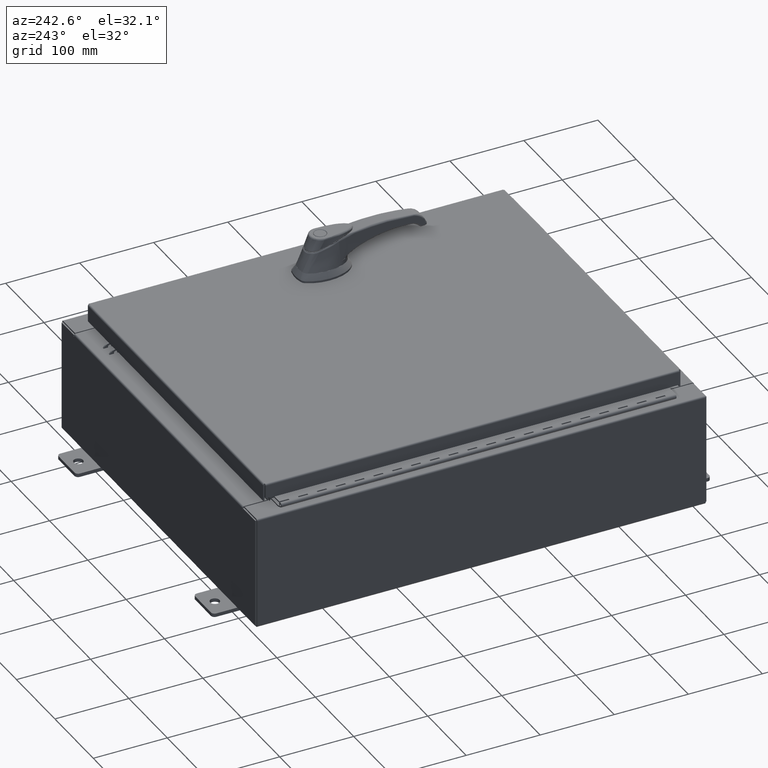
[diagram: clean part render]
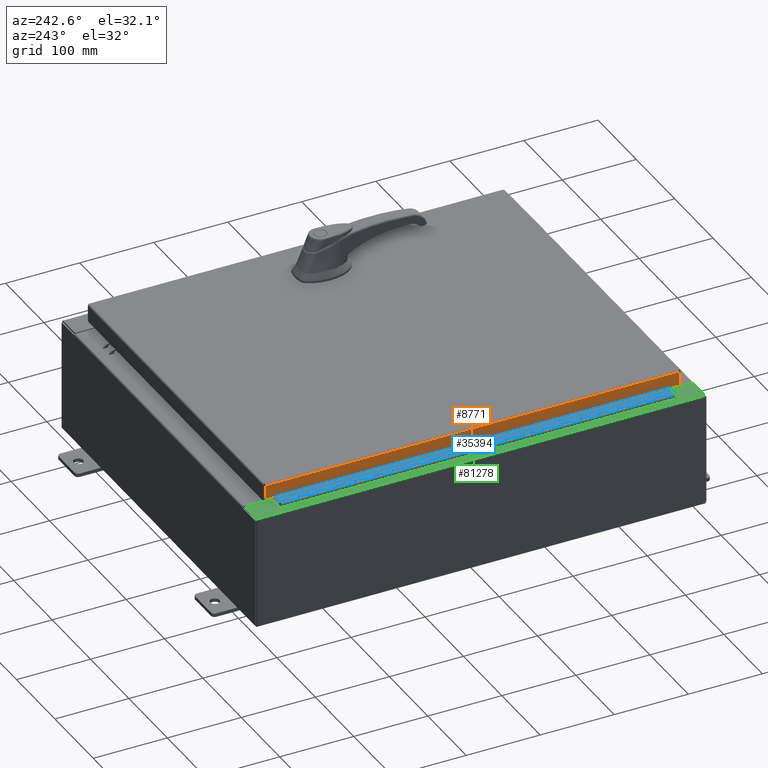
[diagram: same view with three faces highlighted in distinct colors, each labeled with its STEP entity id]
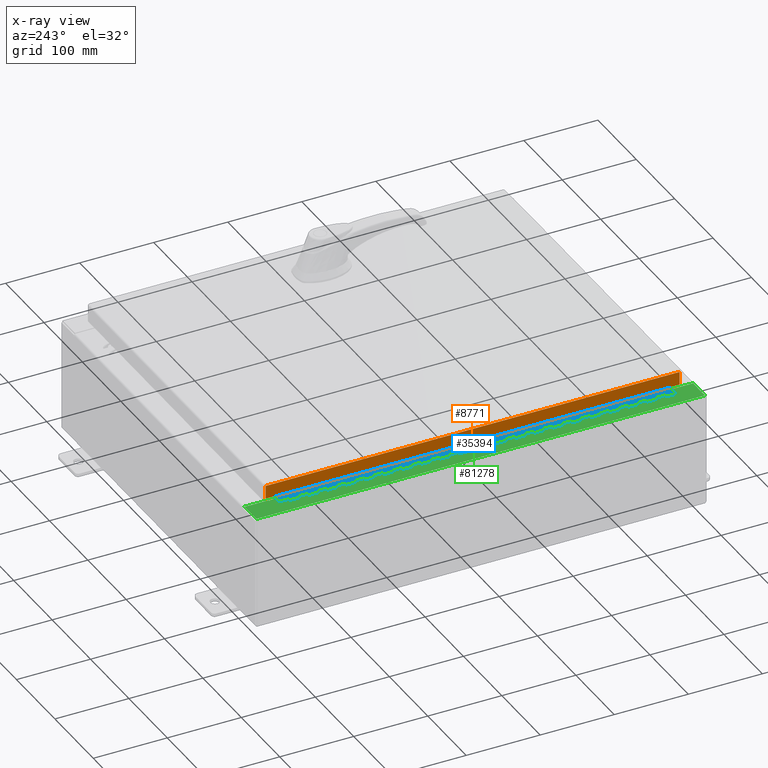
[diagram: x-ray of the same camera — body ghosted, the three highlighted faces saturated]
A machine part, auxiliary view with three faces highlighted in distinct colors.
The next image is the same camera in x-ray (body ghosted, the three faces saturated) — at least one of them is partly hidden behind the body in this view.
Their STEP definitions:

[orange] entity #8771 — the highlighted planar face has unit normal (1, 0, -0).
#1207 = CARTESIAN_POINT ( 'NONE',  ( -9.078000000000001200, -11.00515786437626700, -0.7949999999999996000 ) ) ;
#2886 = FACE_OUTER_BOUND ( 'NONE', #7534, .T. ) ;
#6687 = VERTEX_POINT ( 'NONE', #79056 ) ;
#6715 = CARTESIAN_POINT ( 'NONE',  ( -9.078000000000001200, -11.09400000000000100, -0.7949999999999997100 ) ) ;
#6776 = DIRECTION ( 'NONE',  ( -3.034122441942816500E-015, 0.0000000000000000000, -1.000000000000000000 ) ) ;
#7035 = LINE ( 'NONE', #6715, #70775 ) ;
#7534 = EDGE_LOOP ( 'NONE', ( #107417, #81574, #18056, #77831 ) ) ;
#8771 = ADVANCED_FACE ( 'NONE', ( #2886 ), #110576, .F. ) ;
#15080 = CARTESIAN_POINT ( 'NONE',  ( -9.077999999999999400, 11.00515786437626700, 1.046531838129534400E-013 ) ) ;
#18056 = ORIENTED_EDGE ( 'NONE', *, *, #62719, .F. ) ;
#20311 = DIRECTION ( 'NONE',  ( -3.034122441942816500E-015, 6.982962677686265900E-015, -1.000000000000000000 ) ) ;
#20557 = VERTEX_POINT ( 'NONE', #79494 ) ;
#23744 = DIRECTION ( 'NONE',  ( -3.034122441942816500E-015, 6.982962677686265900E-015, -1.000000000000000000 ) ) ;
#26193 = CARTESIAN_POINT ( 'NONE',  ( -9.077999999999999400, 11.00515786437626900, -0.08770000000000004200 ) ) ;
#28972 = LINE ( 'NONE', #56452, #49202 ) ;
#47774 = DIRECTION ( 'NONE',  ( 3.735695558659274900E-031, -1.000000000000000000, -1.101212895818006000E-045 ) ) ;
#49202 = VECTOR ( 'NONE', #47774, 39.37007874015748100 ) ;
#49949 = CARTESIAN_POINT ( 'NONE',  ( -9.077999999999999400, -3.391264428150889200E-030, 2.780457718396847000E-014 ) ) ;
#52961 = VECTOR ( 'NONE', #23744, 39.37007874015748100 ) ;
#54750 = CARTESIAN_POINT ( 'NONE',  ( -9.077999999999999400, -11.00515786437627100, -0.07469999999999976700 ) ) ;
#56452 = CARTESIAN_POINT ( 'NONE',  ( -9.077999999999999400, -11.09400000000000100, -0.08770000000000004200 ) ) ;
#58643 = DIRECTION ( 'NONE',  ( 1.000000000000000000, 3.735695558659274400E-031, -3.034122441942816500E-015 ) ) ;
#62719 = EDGE_CURVE ( 'NONE', #78210, #6687, #7035, .T. ) ;
#70775 = VECTOR ( 'NONE', #75634, 39.37007874015748100 ) ;
#73556 = LINE ( 'NONE', #54750, #96697 ) ;
#73791 = AXIS2_PLACEMENT_3D ( 'NONE', #49949, #58643, #6776 ) ;
#75634 = DIRECTION ( 'NONE',  ( 4.379057701015054300E-047, 1.000000000000000000, 1.231227687788112300E-016 ) ) ;
#77831 = ORIENTED_EDGE ( 'NONE', *, *, #79407, .F. ) ;
#78210 = VERTEX_POINT ( 'NONE', #1207 ) ;
#79056 = CARTESIAN_POINT ( 'NONE',  ( -9.078000000000001200, 11.00515786437627100, -0.7949999999999969300 ) ) ;
#79407 = EDGE_CURVE ( 'NONE', #20557, #78210, #73556, .T. ) ;
#79494 = CARTESIAN_POINT ( 'NONE',  ( -9.077999999999999400, -11.00515786437626900, -0.08770000000000007000 ) ) ;
#81574 = ORIENTED_EDGE ( 'NONE', *, *, #83382, .T. ) ;
#83382 = EDGE_CURVE ( 'NONE', #105039, #6687, #96391, .T. ) ;
#96391 = LINE ( 'NONE', #15080, #52961 ) ;
#96697 = VECTOR ( 'NONE', #20311, 39.37007874015748100 ) ;
#103719 = EDGE_CURVE ( 'NONE', #105039, #20557, #28972, .T. ) ;
#105039 = VERTEX_POINT ( 'NONE', #26193 ) ;
#107417 = ORIENTED_EDGE ( 'NONE', *, *, #103719, .F. ) ;
#110576 = PLANE ( 'NONE',  #73791 ) ;

[blue] entity #35394 — the highlighted planar face has unit normal (-0, -0, 1).
#118 = ORIENTED_EDGE ( 'NONE', *, *, #27878, .F. ) ;
#173 = ORIENTED_EDGE ( 'NONE', *, *, #96963, .F. ) ;
#812 = EDGE_CURVE ( 'NONE', #83124, #6819, #77041, .T. ) ;
#997 = LINE ( 'NONE', #80486, #108065 ) ;
#1088 = VECTOR ( 'NONE', #27705, 39.37007874015748100 ) ;
#1376 = DIRECTION ( 'NONE',  ( 0.0000000000000000000, -0.0000000000000000000, -1.000000000000000000 ) ) ;
#1669 = LINE ( 'NONE', #20033, #21942 ) ;
#1772 = CARTESIAN_POINT ( 'NONE',  ( -0.6869999999999982800, 0.5504999999999997700, -9.500000000000000000 ) ) ;
#1960 = ORIENTED_EDGE ( 'NONE', *, *, #54554, .F. ) ;
#2058 = ORIENTED_EDGE ( 'NONE', *, *, #48876, .T. ) ;
#2177 = ORIENTED_EDGE ( 'NONE', *, *, #106520, .F. ) ;
#2196 = CARTESIAN_POINT ( 'NONE',  ( -0.6869999999999978300, 0.6754999999999996600, -16.00000000000000000 ) ) ;
#2285 = CARTESIAN_POINT ( 'NONE',  ( -0.6869999999999973900, 0.8004999999999995500, -20.00000000000000000 ) ) ;
#2425 = VERTEX_POINT ( 'NONE', #93186 ) ;
#2864 = VECTOR ( 'NONE', #30391, 39.37007874015748100 ) ;
#2981 = ORIENTED_EDGE ( 'NONE', *, *, #60534, .F. ) ;
#3129 = LINE ( 'NONE', #25972, #72247 ) ;
#3189 = ORIENTED_EDGE ( 'NONE', *, *, #812, .F. ) ;
#3596 = LINE ( 'NONE', #20152, #26638 ) ;
#3688 = ORIENTED_EDGE ( 'NONE', *, *, #40702, .F. ) ;
#3888 = VECTOR ( 'NONE', #17635, 39.37007874015748100 ) ;
#3933 = EDGE_CURVE ( 'NONE', #29956, #8745, #57571, .T. ) ;
#3980 = CARTESIAN_POINT ( 'NONE',  ( -0.6869999999999973900, 0.8004999999999995500, -11.50000000000000000 ) ) ;
#4000 = VECTOR ( 'NONE', #95536, 39.37007874015748100 ) ;
#4123 = EDGE_CURVE ( 'NONE', #108576, #70792, #72513, .T. ) ;
#4232 = ORIENTED_EDGE ( 'NONE', *, *, #35893, .F. ) ;
#4260 = ORIENTED_EDGE ( 'NONE', *, *, #46760, .T. ) ;
#4427 = ORIENTED_EDGE ( 'NONE', *, *, #90076, .F. ) ;
#4516 = DIRECTION ( 'NONE',  ( 0.0000000000000000000, -0.0000000000000000000, -1.000000000000000000 ) ) ;
#4695 = VECTOR ( 'NONE', #92702, 39.37007874015748100 ) ;
#4854 = CARTESIAN_POINT ( 'NONE',  ( -0.6869999999999982800, 0.5504999999999997700, -11.50000000000000000 ) ) ;
#4977 = CARTESIAN_POINT ( 'NONE',  ( -0.6869999999999973900, 0.8004999999999995500, -11.00000000000000000 ) ) ;
#5128 = EDGE_CURVE ( 'NONE', #36652, #57577, #20904, .T. ) ;
#5252 = VECTOR ( 'NONE', #32942, 39.37007874015748100 ) ;
#5492 = DIRECTION ( 'NONE',  ( 0.0000000000000000000, -0.0000000000000000000, -1.000000000000000000 ) ) ;
#5562 = DIRECTION ( 'NONE',  ( 3.369016658928398200E-015, 1.000000000000000000, 0.0000000000000000000 ) ) ;
#5668 = LINE ( 'NONE', #1772, #72095 ) ;
#5760 = EDGE_CURVE ( 'NONE', #13293, #80250, #83116, .T. ) ;
#5766 = ORIENTED_EDGE ( 'NONE', *, *, #22013, .F. ) ;
#5840 = CARTESIAN_POINT ( 'NONE',  ( -0.6869999999999978300, 0.6754999999999996600, -2.000000000000000000 ) ) ;
#5858 = DIRECTION ( 'NONE',  ( 0.0000000000000000000, 0.0000000000000000000, 1.000000000000000000 ) ) ;
#5860 = DIRECTION ( 'NONE',  ( 3.369016658928398200E-015, 1.000000000000000000, 0.0000000000000000000 ) ) ;
#6013 = VERTEX_POINT ( 'NONE', #59655 ) ;
#6211 = DIRECTION ( 'NONE',  ( 0.0000000000000000000, -0.0000000000000000000, -1.000000000000000000 ) ) ;
#6369 = EDGE_CURVE ( 'NONE', #34471, #16832, #73585, .T. ) ;
#6441 = CARTESIAN_POINT ( 'NONE',  ( -0.6869999999999978300, 0.6754999999999996600, -21.00000000000000000 ) ) ;
#6819 = VERTEX_POINT ( 'NONE', #106025 ) ;
#7162 = VECTOR ( 'NONE', #99791, 39.37007874015748100 ) ;
#7207 = CARTESIAN_POINT ( 'NONE',  ( -0.6869999999999973900, 0.8004999999999995500, -5.000000000000000000 ) ) ;
#7239 = LINE ( 'NONE', #63675, #73658 ) ;
#7338 = VECTOR ( 'NONE', #97291, 39.37007874015748100 ) ;
#7387 = VERTEX_POINT ( 'NONE', #106984 ) ;
#7409 = EDGE_CURVE ( 'NONE', #18285, #61819, #70785, .T. ) ;
#7484 = DIRECTION ( 'NONE',  ( -3.389037039080723100E-015, -1.000000000000000000, 0.0000000000000000000 ) ) ;
#7915 = CARTESIAN_POINT ( 'NONE',  ( -0.6869999999999978300, 0.6754999999999996600, -21.00000000000000000 ) ) ;
#8127 = DIRECTION ( 'NONE',  ( -3.389037039080723100E-015, -1.000000000000000000, 0.0000000000000000000 ) ) ;
#8257 = VERTEX_POINT ( 'NONE', #59504 ) ;
#8564 = VERTEX_POINT ( 'NONE', #21252 ) ;
#8745 = VERTEX_POINT ( 'NONE', #92803 ) ;
#8774 = CARTESIAN_POINT ( 'NONE',  ( -0.6869999999999978300, 0.6754999999999996600, -2.999999999999999600 ) ) ;
#8832 = VERTEX_POINT ( 'NONE', #11988 ) ;
#8891 = CARTESIAN_POINT ( 'NONE',  ( -0.6869999999999978300, 0.6754999999999996600, -11.99999999999999800 ) ) ;
#8910 = LINE ( 'NONE', #87798, #77998 ) ;
#9068 = EDGE_CURVE ( 'NONE', #110266, #88853, #78708, .T. ) ;
#9255 = EDGE_CURVE ( 'NONE', #11871, #81796, #73267, .T. ) ;
#9261 = VERTEX_POINT ( 'NONE', #78498 ) ;
#9320 = LINE ( 'NONE', #16876, #3888 ) ;
#9826 = CARTESIAN_POINT ( 'NONE',  ( -0.6869999999999982800, 0.5504999999999997700, -15.50000000000000000 ) ) ;
#10102 = EDGE_CURVE ( 'NONE', #101875, #7387, #32517, .T. ) ;
#10676 = VERTEX_POINT ( 'NONE', #38537 ) ;
#10679 = VECTOR ( 'NONE', #100159, 39.37007874015748100 ) ;
#10948 = EDGE_CURVE ( 'NONE', #85099, #8564, #97741, .T. ) ;
#10974 = CARTESIAN_POINT ( 'NONE',  ( -0.6869999999999982800, 0.5504999999999997700, -3.500000000000000000 ) ) ;
#10985 = DIRECTION ( 'NONE',  ( 3.389037039080723100E-015, 1.000000000000000000, -0.0000000000000000000 ) ) ;
#11183 = LINE ( 'NONE', #35898, #77522 ) ;
#11265 = DIRECTION ( 'NONE',  ( -3.389037039080723100E-015, -1.000000000000000000, 0.0000000000000000000 ) ) ;
#11710 = CARTESIAN_POINT ( 'NONE',  ( -0.6869999999999982800, 0.5504999999999997700, -7.499999999999999100 ) ) ;
#11742 = VECTOR ( 'NONE', #72298, 39.37007874015748100 ) ;
#11800 = CARTESIAN_POINT ( 'NONE',  ( -0.6869999999999998300, 0.07549999999999991400, -21.00000000000000000 ) ) ;
#11833 = CARTESIAN_POINT ( 'NONE',  ( -0.6869999999999978300, 0.6754999999999996600, -21.00000000000000000 ) ) ;
#11871 = VERTEX_POINT ( 'NONE', #32050 ) ;
#11988 = CARTESIAN_POINT ( 'NONE',  ( -0.6869999999999978300, 0.6754999999999996600, -8.500000000000000000 ) ) ;
#12014 = LINE ( 'NONE', #23887, #14701 ) ;
#12026 = VECTOR ( 'NONE', #87517, 39.37007874015748100 ) ;
#12052 = CARTESIAN_POINT ( 'NONE',  ( -0.6869999999999978300, 0.6754999999999996600, -21.00000000000000000 ) ) ;
#12332 = LINE ( 'NONE', #56354, #107244 ) ;
#12480 = VERTEX_POINT ( 'NONE', #99428 ) ;
#12617 = DIRECTION ( 'NONE',  ( 3.389037039080723100E-015, 1.000000000000000000, -0.0000000000000000000 ) ) ;
#12749 = CARTESIAN_POINT ( 'NONE',  ( -0.6869999999999978300, 0.6754999999999996600, 0.0000000000000000000 ) ) ;
#13232 = CARTESIAN_POINT ( 'NONE',  ( -0.6869999999999982800, 0.5504999999999997700, -20.50000000000000400 ) ) ;
#13293 = VERTEX_POINT ( 'NONE', #15131 ) ;
#13685 = CARTESIAN_POINT ( 'NONE',  ( -0.6869999999999973900, 0.8004999999999995500, -5.500000000000000000 ) ) ;
#13904 = ORIENTED_EDGE ( 'NONE', *, *, #22834, .F. ) ;
#14379 = VERTEX_POINT ( 'NONE', #91068 ) ;
#14458 = CARTESIAN_POINT ( 'NONE',  ( -0.6869999999999973900, 0.8004999999999995500, -6.499999999999999100 ) ) ;
#14519 = CARTESIAN_POINT ( 'NONE',  ( -0.6869999999999978300, 0.6754999999999996600, -21.00000000000000000 ) ) ;
#14530 = VECTOR ( 'NONE', #85709, 39.37007874015748100 ) ;
#14701 = VECTOR ( 'NONE', #84496, 39.37007874015748100 ) ;
#14758 = VERTEX_POINT ( 'NONE', #52039 ) ;
#14945 = ORIENTED_EDGE ( 'NONE', *, *, #49057, .F. ) ;
#15131 = CARTESIAN_POINT ( 'NONE',  ( -0.6869999999999978300, 0.6754999999999996600, -13.50000000000000000 ) ) ;
#15171 = LINE ( 'NONE', #38753, #99241 ) ;
#15520 = DIRECTION ( 'NONE',  ( 0.0000000000000000000, 0.0000000000000000000, 1.000000000000000000 ) ) ;
#16135 = ORIENTED_EDGE ( 'NONE', *, *, #41397, .T. ) ;
#16285 = CARTESIAN_POINT ( 'NONE',  ( -0.6869999999999982800, 0.5504999999999997700, -8.500000000000000000 ) ) ;
#16832 = VERTEX_POINT ( 'NONE', #24010 ) ;
#16876 = CARTESIAN_POINT ( 'NONE',  ( -0.6869999999999973900, 0.8004999999999995500, -9.500000000000000000 ) ) ;
#17051 = ORIENTED_EDGE ( 'NONE', *, *, #9255, .F. ) ;
#17316 = CARTESIAN_POINT ( 'NONE',  ( -0.6869999999999978300, 0.6754999999999996600, -7.000000000000000000 ) ) ;
#17635 = DIRECTION ( 'NONE',  ( -3.389037039080723100E-015, -1.000000000000000000, 0.0000000000000000000 ) ) ;
#17703 = CARTESIAN_POINT ( 'NONE',  ( -0.6869999999999982800, 0.5504999999999997700, -11.00000000000000000 ) ) ;
#17736 = CARTESIAN_POINT ( 'NONE',  ( -0.6869999999999973900, 0.8004999999999995500, -20.50000000000000400 ) ) ;
#17748 = LINE ( 'NONE', #25544, #107205 ) ;
#17825 = VERTEX_POINT ( 'NONE', #59182 ) ;
#17880 = LINE ( 'NONE', #111260, #61225 ) ;
#17921 = ORIENTED_EDGE ( 'NONE', *, *, #43256, .F. ) ;
#17954 = CARTESIAN_POINT ( 'NONE',  ( -0.6869999999999982800, 0.5504999999999997700, -16.50000000000000000 ) ) ;
#18207 = VECTOR ( 'NONE', #98567, 39.37007874015748100 ) ;
#18285 = VERTEX_POINT ( 'NONE', #81487 ) ;
#18301 = VECTOR ( 'NONE', #34496, 39.37007874015748100 ) ;
#18393 = VECTOR ( 'NONE', #102361, 39.37007874015748100 ) ;
#18677 = VECTOR ( 'NONE', #21028, 39.37007874015748100 ) ;
#18885 = CARTESIAN_POINT ( 'NONE',  ( -0.6869999999999978300, 0.6754999999999996600, -9.500000000000000000 ) ) ;
#18968 = CARTESIAN_POINT ( 'NONE',  ( -0.6869999999999982800, 0.5504999999999997700, -14.49999999999999800 ) ) ;
#19009 = CARTESIAN_POINT ( 'NONE',  ( -0.6869999999999973900, 0.8004999999999995500, -4.500000000000000000 ) ) ;
#19062 = VECTOR ( 'NONE', #10985, 39.37007874015748100 ) ;
#19202 = CARTESIAN_POINT ( 'NONE',  ( -0.6869999999999982800, 0.5504999999999997700, -4.500000000000000000 ) ) ;
#19230 = CARTESIAN_POINT ( 'NONE',  ( -0.6869999999999973900, 0.8004999999999995500, -11.99999999999999800 ) ) ;
#19280 = LINE ( 'NONE', #82332, #68229 ) ;
#19449 = ORIENTED_EDGE ( 'NONE', *, *, #49647, .F. ) ;
#19713 = VECTOR ( 'NONE', #78483, 39.37007874015748100 ) ;
#19740 = EDGE_CURVE ( 'NONE', #18285, #61611, #91499, .T. ) ;
#19746 = VECTOR ( 'NONE', #12617, 39.37007874015748100 ) ;
#20033 = CARTESIAN_POINT ( 'NONE',  ( -0.6869999999999973900, 0.8004999999999995500, -10.50000000000000000 ) ) ;
#20152 = CARTESIAN_POINT ( 'NONE',  ( -0.6869999999999973900, 0.8004999999999995500, -8.500000000000000000 ) ) ;
#20227 = EDGE_CURVE ( 'NONE', #96473, #80250, #84610, .T. ) ;
#20554 = DIRECTION ( 'NONE',  ( 0.0000000000000000000, 0.0000000000000000000, 1.000000000000000000 ) ) ;
#20559 = ORIENTED_EDGE ( 'NONE', *, *, #70939, .F. ) ;
#20662 = FACE_OUTER_BOUND ( 'NONE', #77436, .T. ) ;
#20904 = LINE ( 'NONE', #11800, #18207 ) ;
#21028 = DIRECTION ( 'NONE',  ( 3.369016658928398200E-015, 1.000000000000000000, 0.0000000000000000000 ) ) ;
#21088 = LINE ( 'NONE', #41700, #18393 ) ;
#21252 = CARTESIAN_POINT ( 'NONE',  ( -0.6869999999999978300, 0.6754999999999996600, -4.000000000000000000 ) ) ;
#21324 = EDGE_CURVE ( 'NONE', #52504, #69922, #53353, .T. ) ;
#21325 = VECTOR ( 'NONE', #25852, 39.37007874015748100 ) ;
#21392 = CARTESIAN_POINT ( 'NONE',  ( -0.6869999999999982800, 0.5504999999999997700, -7.499999999999999100 ) ) ;
#21467 = ORIENTED_EDGE ( 'NONE', *, *, #29502, .T. ) ;
#21543 = ORIENTED_EDGE ( 'NONE', *, *, #85564, .F. ) ;
#21840 = EDGE_CURVE ( 'NONE', #99671, #108577, #50716, .T. ) ;
#21942 = VECTOR ( 'NONE', #54857, 39.37007874015748100 ) ;
#22013 = EDGE_CURVE ( 'NONE', #97779, #49268, #85945, .T. ) ;
#22016 = DIRECTION ( 'NONE',  ( -3.389037039080723100E-015, -1.000000000000000000, 0.0000000000000000000 ) ) ;
#22441 = CARTESIAN_POINT ( 'NONE',  ( -0.6869999999999982800, 0.5504999999999997700, -12.99999999999999800 ) ) ;
#22511 = LINE ( 'NONE', #45453, #88977 ) ;
#22524 = CARTESIAN_POINT ( 'NONE',  ( -0.6870000000000022800, -0.6245000000000003900, -21.00000000000000000 ) ) ;
#22818 = VECTOR ( 'NONE', #97197, 39.37007874015748100 ) ;
#22834 = EDGE_CURVE ( 'NONE', #49268, #90767, #50610, .T. ) ;
#23066 = VERTEX_POINT ( 'NONE', #72509 ) ;
#23480 = ORIENTED_EDGE ( 'NONE', *, *, #68563, .F. ) ;
#23523 = VECTOR ( 'NONE', #27491, 39.37007874015748100 ) ;
#23704 = ORIENTED_EDGE ( 'NONE', *, *, #4123, .T. ) ;
#23745 = EDGE_CURVE ( 'NONE', #81796, #29220, #70595, .T. ) ;
#23814 = ORIENTED_EDGE ( 'NONE', *, *, #21840, .F. ) ;
#23887 = CARTESIAN_POINT ( 'NONE',  ( -0.6869999999999973900, 0.8004999999999995500, -16.50000000000000000 ) ) ;
#23888 = CARTESIAN_POINT ( 'NONE',  ( -0.6869999999999978300, 0.6754999999999996600, -16.50000000000000000 ) ) ;
#24010 = CARTESIAN_POINT ( 'NONE',  ( -0.6869999999999982800, 0.5504999999999997700, -6.000000000000000900 ) ) ;
#24047 = LINE ( 'NONE', #79545, #1088 ) ;
#24083 = DIRECTION ( 'NONE',  ( 0.0000000000000000000, -0.0000000000000000000, -1.000000000000000000 ) ) ;
#24275 = VERTEX_POINT ( 'NONE', #90458 ) ;
#25263 = CARTESIAN_POINT ( 'NONE',  ( -0.6869999999999973900, 0.8004999999999995500, -17.99999999999999600 ) ) ;
#25544 = CARTESIAN_POINT ( 'NONE',  ( -0.6869999999999982800, 0.5504999999999997700, -18.50000000000000000 ) ) ;
#25731 = LINE ( 'NONE', #30300, #71853 ) ;
#25852 = DIRECTION ( 'NONE',  ( -3.389037039080723100E-015, -1.000000000000000000, 0.0000000000000000000 ) ) ;
#25972 = CARTESIAN_POINT ( 'NONE',  ( -0.6869999999999978300, 0.6754999999999996600, -21.00000000000000000 ) ) ;
#26638 = VECTOR ( 'NONE', #106913, 39.37007874015748100 ) ;
#26724 = DIRECTION ( 'NONE',  ( 0.0000000000000000000, 0.0000000000000000000, 1.000000000000000000 ) ) ;
#26791 = DIRECTION ( 'NONE',  ( -3.389037039080723100E-015, -1.000000000000000000, 0.0000000000000000000 ) ) ;
#26980 = EDGE_CURVE ( 'NONE', #16832, #53115, #44657, .T. ) ;
#26998 = ORIENTED_EDGE ( 'NONE', *, *, #68950, .F. ) ;
#27090 = VERTEX_POINT ( 'NONE', #18968 ) ;
#27400 = CARTESIAN_POINT ( 'NONE',  ( -0.6869999999999982800, 0.5504999999999997700, -17.50000000000000000 ) ) ;
#27459 = VECTOR ( 'NONE', #98658, 39.37007874015748100 ) ;
#27491 = DIRECTION ( 'NONE',  ( 0.0000000000000000000, 0.0000000000000000000, 1.000000000000000000 ) ) ;
#27498 = VERTEX_POINT ( 'NONE', #41936 ) ;
#27553 = CARTESIAN_POINT ( 'NONE',  ( -0.6869999999999973900, 0.8004999999999995500, -2.999999999999999600 ) ) ;
#27634 = CARTESIAN_POINT ( 'NONE',  ( -0.6869999999999978300, 0.6754999999999996600, -11.50000000000000000 ) ) ;
#27705 = DIRECTION ( 'NONE',  ( -3.389037039080723100E-015, -1.000000000000000000, 0.0000000000000000000 ) ) ;
#27878 = EDGE_CURVE ( 'NONE', #99472, #82523, #9320, .T. ) ;
#28047 = ORIENTED_EDGE ( 'NONE', *, *, #82021, .F. ) ;
#28188 = CARTESIAN_POINT ( 'NONE',  ( -0.6869999999999973900, 0.8004999999999995500, -1.499999999999999800 ) ) ;
#28426 = CARTESIAN_POINT ( 'NONE',  ( -0.6869999999999978300, 0.6754999999999996600, -0.5000000000000000000 ) ) ;
#28584 = VECTOR ( 'NONE', #85336, 39.37007874015748100 ) ;
#28636 = LINE ( 'NONE', #75587, #48877 ) ;
#28704 = EDGE_CURVE ( 'NONE', #38142, #101875, #24047, .T. ) ;
#29184 = CARTESIAN_POINT ( 'NONE',  ( -0.6869999999999982800, 0.5504999999999997700, -21.00000000000000000 ) ) ;
#29220 = VERTEX_POINT ( 'NONE', #112408 ) ;
#29231 = DIRECTION ( 'NONE',  ( 0.0000000000000000000, 0.0000000000000000000, 1.000000000000000000 ) ) ;
#29502 = EDGE_CURVE ( 'NONE', #69403, #8257, #37653, .T. ) ;
#29956 = VERTEX_POINT ( 'NONE', #40929 ) ;
#30300 = CARTESIAN_POINT ( 'NONE',  ( -0.6869999999999982800, 0.5504999999999997700, -14.49999999999999800 ) ) ;
#30391 = DIRECTION ( 'NONE',  ( -3.389037039080723100E-015, -1.000000000000000000, 0.0000000000000000000 ) ) ;
#30424 = ORIENTED_EDGE ( 'NONE', *, *, #10948, .F. ) ;
#30470 = EDGE_CURVE ( 'NONE', #61819, #83124, #32023, .T. ) ;
#30741 = ORIENTED_EDGE ( 'NONE', *, *, #3933, .T. ) ;
#31027 = CARTESIAN_POINT ( 'NONE',  ( -0.6869999999999982800, 0.5504999999999997700, -16.00000000000000000 ) ) ;
#31337 = CARTESIAN_POINT ( 'NONE',  ( -0.6869999999999982800, 0.5504999999999997700, -4.000000000000000000 ) ) ;
#31644 = CARTESIAN_POINT ( 'NONE',  ( -0.6869999999999978300, 0.6754999999999996600, -18.50000000000000000 ) ) ;
#31905 = ORIENTED_EDGE ( 'NONE', *, *, #80767, .F. ) ;
#32023 = LINE ( 'NONE', #11710, #11742 ) ;
#32050 = CARTESIAN_POINT ( 'NONE',  ( -0.6869999999999982800, 0.5504999999999997700, -10.50000000000000000 ) ) ;
#32081 = CARTESIAN_POINT ( 'NONE',  ( -0.6869999999999973900, 0.8004999999999995500, -3.500000000000000000 ) ) ;
#32499 = VECTOR ( 'NONE', #74223, 39.37007874015748100 ) ;
#32517 = LINE ( 'NONE', #48864, #50102 ) ;
#32627 = VECTOR ( 'NONE', #5492, 39.37007874015748100 ) ;
#32926 = CARTESIAN_POINT ( 'NONE',  ( -0.6869999999999978300, 0.6754999999999996600, -14.00000000000000000 ) ) ;
#32942 = DIRECTION ( 'NONE',  ( 3.389037039080723100E-015, 1.000000000000000000, -0.0000000000000000000 ) ) ;
#32968 = EDGE_CURVE ( 'NONE', #48264, #52781, #50683, .T. ) ;
#33439 = EDGE_CURVE ( 'NONE', #8832, #6819, #95478, .T. ) ;
#33472 = EDGE_CURVE ( 'NONE', #106247, #82361, #46629, .T. ) ;
#33671 = LINE ( 'NONE', #109424, #79713 ) ;
#33875 = CARTESIAN_POINT ( 'NONE',  ( -0.6869999999999978300, 0.6754999999999996600, -21.00000000000000000 ) ) ;
#34187 = DIRECTION ( 'NONE',  ( 0.0000000000000000000, 0.0000000000000000000, 1.000000000000000000 ) ) ;
#34318 = DIRECTION ( 'NONE',  ( 0.0000000000000000000, -0.0000000000000000000, -1.000000000000000000 ) ) ;
#34471 = VERTEX_POINT ( 'NONE', #85050 ) ;
#34482 = ORIENTED_EDGE ( 'NONE', *, *, #43899, .F. ) ;
#34496 = DIRECTION ( 'NONE',  ( 0.0000000000000000000, -0.0000000000000000000, -1.000000000000000000 ) ) ;
#34600 = ORIENTED_EDGE ( 'NONE', *, *, #90739, .F. ) ;
#34698 = CARTESIAN_POINT ( 'NONE',  ( -0.6869999999999978300, 0.6754999999999996600, -6.499999999999999100 ) ) ;
#34916 = CARTESIAN_POINT ( 'NONE',  ( -0.6869999999999998300, 0.07549999999999991400, 0.0000000000000000000 ) ) ;
#35096 = LINE ( 'NONE', #70083, #12026 ) ;
#35394 = ADVANCED_FACE ( 'NONE', ( #20662 ), #109351, .T. ) ;
#35756 = CARTESIAN_POINT ( 'NONE',  ( -0.6869999999999982800, 0.5504999999999997700, -1.499999999999999800 ) ) ;
#35893 = EDGE_CURVE ( 'NONE', #69432, #48264, #19280, .T. ) ;
#35898 = CARTESIAN_POINT ( 'NONE',  ( -0.6869999999999982800, 0.5504999999999997700, -8.500000000000000000 ) ) ;
#35976 = DIRECTION ( 'NONE',  ( 3.389037039080723100E-015, 1.000000000000000000, -0.0000000000000000000 ) ) ;
#36516 = CARTESIAN_POINT ( 'NONE',  ( -0.6869999999999978300, 0.6754999999999996600, -21.00000000000000000 ) ) ;
#36652 = VERTEX_POINT ( 'NONE', #57667 ) ;
#36750 = LINE ( 'NONE', #2285, #19062 ) ;
#37009 = LINE ( 'NONE', #44428, #103375 ) ;
#37232 = ORIENTED_EDGE ( 'NONE', *, *, #19740, .T. ) ;
#37570 = CARTESIAN_POINT ( 'NONE',  ( -0.6869999999999982800, 0.5504999999999997700, -8.000000000000000000 ) ) ;
#37653 = LINE ( 'NONE', #33875, #14530 ) ;
#37772 = CARTESIAN_POINT ( 'NONE',  ( -0.6869999999999982800, 0.5504999999999997700, -12.49999999999999800 ) ) ;
#38142 = VERTEX_POINT ( 'NONE', #51632 ) ;
#38537 = CARTESIAN_POINT ( 'NONE',  ( -0.6869999999999982800, 0.5504999999999997700, -10.00000000000000000 ) ) ;
#38629 = VECTOR ( 'NONE', #55008, 39.37007874015748100 ) ;
#38753 = CARTESIAN_POINT ( 'NONE',  ( -0.6869999999999973900, 0.8004999999999995500, -19.00000000000000000 ) ) ;
#38963 = LINE ( 'NONE', #43290, #21325 ) ;
#38967 = LINE ( 'NONE', #63149, #82272 ) ;
#39014 = ORIENTED_EDGE ( 'NONE', *, *, #30470, .F. ) ;
#39409 = CARTESIAN_POINT ( 'NONE',  ( -0.6869999999999978300, 0.6754999999999996600, -5.000000000000000000 ) ) ;
#39460 = VERTEX_POINT ( 'NONE', #99706 ) ;
#39855 = ORIENTED_EDGE ( 'NONE', *, *, #32968, .F. ) ;
#40084 = CARTESIAN_POINT ( 'NONE',  ( -0.6869999999999978300, 0.6754999999999996600, -1.499999999999999800 ) ) ;
#40134 = DIRECTION ( 'NONE',  ( 0.0000000000000000000, 0.0000000000000000000, 1.000000000000000000 ) ) ;
#40452 = EDGE_CURVE ( 'NONE', #23066, #111783, #91978, .T. ) ;
#40702 = EDGE_CURVE ( 'NONE', #73619, #77510, #12014, .T. ) ;
#40929 = CARTESIAN_POINT ( 'NONE',  ( -0.6869999999999978300, 0.6754999999999996600, -20.50000000000000400 ) ) ;
#41081 = LINE ( 'NONE', #17736, #87176 ) ;
#41397 = EDGE_CURVE ( 'NONE', #60401, #39460, #112183, .T. ) ;
#41562 = CARTESIAN_POINT ( 'NONE',  ( -0.6869999999999982800, 0.5504999999999997700, -7.000000000000000000 ) ) ;
#41700 = CARTESIAN_POINT ( 'NONE',  ( -0.6869999999999978300, 0.6754999999999996600, -21.00000000000000000 ) ) ;
#41914 = EDGE_CURVE ( 'NONE', #64685, #74725, #38967, .T. ) ;
#41936 = CARTESIAN_POINT ( 'NONE',  ( -0.6869999999999982800, 0.5504999999999997700, -18.50000000000000000 ) ) ;
#42275 = EDGE_CURVE ( 'NONE', #36652, #107108, #45711, .T. ) ;
#42753 = LINE ( 'NONE', #98647, #19746 ) ;
#42863 = CARTESIAN_POINT ( 'NONE',  ( -0.6869999999999978300, 0.6754999999999996600, -21.00000000000000000 ) ) ;
#43256 = EDGE_CURVE ( 'NONE', #69922, #61611, #22511, .T. ) ;
#43290 = CARTESIAN_POINT ( 'NONE',  ( -0.6869999999999973900, 0.8004999999999995500, -13.50000000000000000 ) ) ;
#43313 = CARTESIAN_POINT ( 'NONE',  ( -0.6869999999999973900, 0.8004999999999995500, -18.50000000000000000 ) ) ;
#43557 = LINE ( 'NONE', #37772, #86907 ) ;
#43708 = DIRECTION ( 'NONE',  ( 0.0000000000000000000, -0.0000000000000000000, -1.000000000000000000 ) ) ;
#43760 = ORIENTED_EDGE ( 'NONE', *, *, #96924, .T. ) ;
#43899 = EDGE_CURVE ( 'NONE', #44483, #69432, #53623, .T. ) ;
#44428 = CARTESIAN_POINT ( 'NONE',  ( -0.6869999999999982800, 0.5504999999999997700, -1.499999999999999800 ) ) ;
#44483 = VERTEX_POINT ( 'NONE', #27634 ) ;
#44657 = LINE ( 'NONE', #69711, #4000 ) ;
#44669 = CARTESIAN_POINT ( 'NONE',  ( -0.6869999999999978300, 0.6754999999999996600, -21.00000000000000000 ) ) ;
#44993 = ORIENTED_EDGE ( 'NONE', *, *, #105716, .F. ) ;
#45453 = CARTESIAN_POINT ( 'NONE',  ( -0.6869999999999973900, 0.8004999999999995500, -7.000000000000000000 ) ) ;
#45463 = VECTOR ( 'NONE', #60719, 39.37007874015748100 ) ;
#45626 = ORIENTED_EDGE ( 'NONE', *, *, #84660, .F. ) ;
#45706 = VECTOR ( 'NONE', #76833, 39.37007874015748100 ) ;
#45711 = LINE ( 'NONE', #22524, #89077 ) ;
#46141 = ORIENTED_EDGE ( 'NONE', *, *, #23745, .F. ) ;
#46156 = ORIENTED_EDGE ( 'NONE', *, *, #108001, .F. ) ;
#46441 = DIRECTION ( 'NONE',  ( 0.0000000000000000000, -0.0000000000000000000, -1.000000000000000000 ) ) ;
#46629 = LINE ( 'NONE', #88471, #66870 ) ;
#46683 = ORIENTED_EDGE ( 'NONE', *, *, #28704, .F. ) ;
#46760 = EDGE_CURVE ( 'NONE', #90112, #53115, #111525, .T. ) ;
#47541 = VECTOR ( 'NONE', #74235, 39.37007874015748100 ) ;
#47814 = CARTESIAN_POINT ( 'NONE',  ( -0.6869999999999982800, 0.5504999999999997700, -2.500000000000000000 ) ) ;
#47839 = CARTESIAN_POINT ( 'NONE',  ( -0.6869999999999982800, 0.5504999999999997700, -5.500000000000000000 ) ) ;
#47976 = CARTESIAN_POINT ( 'NONE',  ( -0.6870000000000022800, -0.6245000000000003900, -21.00000000000000000 ) ) ;
#47986 = VERTEX_POINT ( 'NONE', #27400 ) ;
#48050 = CARTESIAN_POINT ( 'NONE',  ( -0.6869999999999978300, 0.6754999999999996600, -21.00000000000000000 ) ) ;
#48264 = VERTEX_POINT ( 'NONE', #66692 ) ;
#48367 = LINE ( 'NONE', #111348, #45706 ) ;
#48550 = LINE ( 'NONE', #42863, #91932 ) ;
#48864 = CARTESIAN_POINT ( 'NONE',  ( -0.6869999999999982800, 0.5504999999999997700, -19.50000000000000000 ) ) ;
#48876 = EDGE_CURVE ( 'NONE', #73619, #70629, #3129, .T. ) ;
#48877 = VECTOR ( 'NONE', #24083, 39.37007874015748100 ) ;
#48970 = ORIENTED_EDGE ( 'NONE', *, *, #95080, .F. ) ;
#49023 = CARTESIAN_POINT ( 'NONE',  ( -0.6869999999999978300, 0.6754999999999996600, -21.00000000000000000 ) ) ;
#49057 = EDGE_CURVE ( 'NONE', #108576, #23066, #64104, .T. ) ;
#49105 = VERTEX_POINT ( 'NONE', #5840 ) ;
#49268 = VERTEX_POINT ( 'NONE', #76591 ) ;
#49314 = ORIENTED_EDGE ( 'NONE', *, *, #53905, .T. ) ;
#49351 = DIRECTION ( 'NONE',  ( 3.389037039080723100E-015, 1.000000000000000000, -0.0000000000000000000 ) ) ;
#49427 = ORIENTED_EDGE ( 'NONE', *, *, #93688, .F. ) ;
#49428 = VECTOR ( 'NONE', #73461, 39.37007874015748100 ) ;
#49551 = EDGE_CURVE ( 'NONE', #86001, #83289, #37009, .T. ) ;
#49647 = EDGE_CURVE ( 'NONE', #84646, #89836, #11183, .T. ) ;
#49848 = ORIENTED_EDGE ( 'NONE', *, *, #50055, .F. ) ;
#49955 = CARTESIAN_POINT ( 'NONE',  ( -0.6869999999999978300, 0.6754999999999996600, -21.00000000000000000 ) ) ;
#50003 = EDGE_CURVE ( 'NONE', #101152, #24275, #15171, .T. ) ;
#50055 = EDGE_CURVE ( 'NONE', #57496, #55227, #50343, .T. ) ;
#50102 = VECTOR ( 'NONE', #101191, 39.37007874015748100 ) ;
#50109 = CARTESIAN_POINT ( 'NONE',  ( -0.6869999999999978300, 0.6754999999999996600, -15.50000000000000000 ) ) ;
#50270 = ORIENTED_EDGE ( 'NONE', *, *, #9068, .F. ) ;
#50343 = LINE ( 'NONE', #91342, #93779 ) ;
#50366 = ORIENTED_EDGE ( 'NONE', *, *, #50003, .F. ) ;
#50610 = LINE ( 'NONE', #7207, #94053 ) ;
#50632 = ORIENTED_EDGE ( 'NONE', *, *, #107027, .F. ) ;
#50683 = LINE ( 'NONE', #19230, #7338 ) ;
#50708 = EDGE_CURVE ( 'NONE', #55227, #96473, #43557, .T. ) ;
#50716 = LINE ( 'NONE', #32081, #4695 ) ;
#50749 = CARTESIAN_POINT ( 'NONE',  ( -0.6869999999999978300, 0.6754999999999996600, -12.49999999999999800 ) ) ;
#50985 = EDGE_CURVE ( 'NONE', #88853, #70629, #99153, .T. ) ;
#51035 = ORIENTED_EDGE ( 'NONE', *, *, #96597, .F. ) ;
#51632 = CARTESIAN_POINT ( 'NONE',  ( -0.6869999999999978300, 0.6754999999999996600, -19.50000000000000000 ) ) ;
#51683 = ORIENTED_EDGE ( 'NONE', *, *, #58663, .F. ) ;
#51695 = CARTESIAN_POINT ( 'NONE',  ( -0.6869999999999982800, 0.5504999999999997700, -1.000000000000000000 ) ) ;
#52039 = CARTESIAN_POINT ( 'NONE',  ( -0.6869999999999982800, 0.5504999999999997700, -17.99999999999999600 ) ) ;
#52504 = VERTEX_POINT ( 'NONE', #74813 ) ;
#52781 = VERTEX_POINT ( 'NONE', #8891 ) ;
#53115 = VERTEX_POINT ( 'NONE', #90286 ) ;
#53345 = ORIENTED_EDGE ( 'NONE', *, *, #40452, .F. ) ;
#53353 = LINE ( 'NONE', #92977, #73657 ) ;
#53356 = DIRECTION ( 'NONE',  ( 0.0000000000000000000, 0.0000000000000000000, 1.000000000000000000 ) ) ;
#53623 = LINE ( 'NONE', #3980, #102453 ) ;
#53905 = EDGE_CURVE ( 'NONE', #44483, #29220, #33671, .T. ) ;
#54307 = CARTESIAN_POINT ( 'NONE',  ( -0.6869999999999973900, 0.8004999999999995500, -7.499999999999999100 ) ) ;
#54554 = EDGE_CURVE ( 'NONE', #57577, #70792, #67392, .T. ) ;
#54857 = DIRECTION ( 'NONE',  ( -3.389037039080723100E-015, -1.000000000000000000, 0.0000000000000000000 ) ) ;
#55008 = DIRECTION ( 'NONE',  ( 3.389037039080723100E-015, 1.000000000000000000, -0.0000000000000000000 ) ) ;
#55191 = CARTESIAN_POINT ( 'NONE',  ( -0.6869999999999978300, 0.6754999999999996600, -3.500000000000000000 ) ) ;
#55227 = VERTEX_POINT ( 'NONE', #59413 ) ;
#56354 = CARTESIAN_POINT ( 'NONE',  ( -0.6869999999999982800, 0.5504999999999997700, -17.50000000000000000 ) ) ;
#56724 = LINE ( 'NONE', #44669, #77035 ) ;
#56731 = DIRECTION ( 'NONE',  ( 0.0000000000000000000, 0.0000000000000000000, 1.000000000000000000 ) ) ;
#56791 = CARTESIAN_POINT ( 'NONE',  ( -0.6869999999999982800, 0.5504999999999997700, -13.50000000000000000 ) ) ;
#56807 = VECTOR ( 'NONE', #86312, 39.37007874015748100 ) ;
#57382 = CARTESIAN_POINT ( 'NONE',  ( -0.6869999999999978300, 0.6754999999999996600, -14.99999999999999800 ) ) ;
#57400 = DIRECTION ( 'NONE',  ( 1.000000000000000000, -3.369016658928398200E-015, 0.0000000000000000000 ) ) ;
#57403 = ORIENTED_EDGE ( 'NONE', *, *, #76193, .T. ) ;
#57496 = VERTEX_POINT ( 'NONE', #50749 ) ;
#57571 = LINE ( 'NONE', #96373, #77922 ) ;
#57577 = VERTEX_POINT ( 'NONE', #34916 ) ;
#57654 = DIRECTION ( 'NONE',  ( 0.0000000000000000000, 0.0000000000000000000, 1.000000000000000000 ) ) ;
#57667 = CARTESIAN_POINT ( 'NONE',  ( -0.6869999999999998300, 0.07549999999999991400, -21.00000000000000000 ) ) ;
#57767 = ORIENTED_EDGE ( 'NONE', *, *, #42275, .T. ) ;
#58663 = EDGE_CURVE ( 'NONE', #74725, #2425, #111680, .T. ) ;
#58734 = VECTOR ( 'NONE', #71705, 39.37007874015748100 ) ;
#58781 = CARTESIAN_POINT ( 'NONE',  ( -0.6869999999999978300, 0.6754999999999996600, -17.00000000000000000 ) ) ;
#59039 = CARTESIAN_POINT ( 'NONE',  ( -0.6869999999999973900, 0.8004999999999995500, -14.49999999999999800 ) ) ;
#59182 = CARTESIAN_POINT ( 'NONE',  ( -0.6869999999999978300, 0.6754999999999996600, -10.00000000000000000 ) ) ;
#59413 = CARTESIAN_POINT ( 'NONE',  ( -0.6869999999999982800, 0.5504999999999997700, -12.49999999999999800 ) ) ;
#59504 = CARTESIAN_POINT ( 'NONE',  ( -0.6869999999999978300, 0.6754999999999996600, -1.000000000000000000 ) ) ;
#59655 = CARTESIAN_POINT ( 'NONE',  ( -0.6869999999999982800, 0.5504999999999997700, -17.00000000000000000 ) ) ;
#59826 = ORIENTED_EDGE ( 'NONE', *, *, #80118, .T. ) ;
#60281 = ORIENTED_EDGE ( 'NONE', *, *, #80429, .F. ) ;
#60401 = VERTEX_POINT ( 'NONE', #31644 ) ;
#60499 = ORIENTED_EDGE ( 'NONE', *, *, #101034, .F. ) ;
#60534 = EDGE_CURVE ( 'NONE', #69403, #86001, #107636, .T. ) ;
#60719 = DIRECTION ( 'NONE',  ( -3.389037039080723100E-015, -1.000000000000000000, 0.0000000000000000000 ) ) ;
#61225 = VECTOR ( 'NONE', #7484, 39.37007874015748100 ) ;
#61590 = ORIENTED_EDGE ( 'NONE', *, *, #101656, .F. ) ;
#61611 = VERTEX_POINT ( 'NONE', #17316 ) ;
#61819 = VERTEX_POINT ( 'NONE', #21392 ) ;
#61824 = ORIENTED_EDGE ( 'NONE', *, *, #33472, .T. ) ;
#62256 = DIRECTION ( 'NONE',  ( 0.0000000000000000000, -0.0000000000000000000, -1.000000000000000000 ) ) ;
#63023 = VERTEX_POINT ( 'NONE', #71846 ) ;
#63149 = CARTESIAN_POINT ( 'NONE',  ( -0.6869999999999973900, 0.8004999999999995500, -2.500000000000000000 ) ) ;
#63593 = CARTESIAN_POINT ( 'NONE',  ( -0.6869999999999982800, 0.5504999999999997700, -14.00000000000000000 ) ) ;
#63675 = CARTESIAN_POINT ( 'NONE',  ( -0.6869999999999978300, 0.6754999999999996600, -21.00000000000000000 ) ) ;
#63889 = ORIENTED_EDGE ( 'NONE', *, *, #94226, .F. ) ;
#64104 = LINE ( 'NONE', #81928, #95343 ) ;
#64685 = VERTEX_POINT ( 'NONE', #75652 ) ;
#66680 = ORIENTED_EDGE ( 'NONE', *, *, #50985, .F. ) ;
#66692 = CARTESIAN_POINT ( 'NONE',  ( -0.6869999999999982800, 0.5504999999999997700, -11.99999999999999800 ) ) ;
#66779 = ORIENTED_EDGE ( 'NONE', *, *, #74577, .T. ) ;
#66870 = VECTOR ( 'NONE', #96843, 39.37007874015748100 ) ;
#67042 = CARTESIAN_POINT ( 'NONE',  ( -0.6869999999999978300, 0.6754999999999996600, -21.00000000000000000 ) ) ;
#67392 = LINE ( 'NONE', #107429, #18677 ) ;
#67558 = ORIENTED_EDGE ( 'NONE', *, *, #72465, .T. ) ;
#67578 = ORIENTED_EDGE ( 'NONE', *, *, #92688, .T. ) ;
#67763 = DIRECTION ( 'NONE',  ( -3.389037039080723100E-015, -1.000000000000000000, 0.0000000000000000000 ) ) ;
#68149 = VECTOR ( 'NONE', #102690, 39.37007874015748100 ) ;
#68229 = VECTOR ( 'NONE', #100203, 39.37007874015748100 ) ;
#68284 = ORIENTED_EDGE ( 'NONE', *, *, #20227, .F. ) ;
#68563 = EDGE_CURVE ( 'NONE', #13293, #109839, #38963, .T. ) ;
#68807 = VECTOR ( 'NONE', #56731, 39.37007874015748100 ) ;
#68950 = EDGE_CURVE ( 'NONE', #84667, #111560, #48367, .T. ) ;
#69246 = LINE ( 'NONE', #14458, #2864 ) ;
#69344 = VECTOR ( 'NONE', #85848, 39.37007874015748100 ) ;
#69403 = VERTEX_POINT ( 'NONE', #40084 ) ;
#69426 = ORIENTED_EDGE ( 'NONE', *, *, #88104, .T. ) ;
#69432 = VERTEX_POINT ( 'NONE', #4854 ) ;
#69441 = CARTESIAN_POINT ( 'NONE',  ( -0.6869999999999982800, 0.5504999999999997700, -10.50000000000000000 ) ) ;
#69476 = ORIENTED_EDGE ( 'NONE', *, *, #41914, .F. ) ;
#69711 = CARTESIAN_POINT ( 'NONE',  ( -0.6869999999999973900, 0.8004999999999995500, -6.000000000000000900 ) ) ;
#69722 = ORIENTED_EDGE ( 'NONE', *, *, #101697, .F. ) ;
#69797 = VECTOR ( 'NONE', #15520, 39.37007874015748100 ) ;
#69888 = CARTESIAN_POINT ( 'NONE',  ( -0.6869999999999982800, 0.5504999999999997700, -16.50000000000000000 ) ) ;
#69922 = VERTEX_POINT ( 'NONE', #41562 ) ;
#70083 = CARTESIAN_POINT ( 'NONE',  ( -0.6869999999999973900, 0.8004999999999995500, -1.000000000000000000 ) ) ;
#70595 = LINE ( 'NONE', #4977, #47541 ) ;
#70629 = VERTEX_POINT ( 'NONE', #2196 ) ;
#70785 = LINE ( 'NONE', #54307, #27459 ) ;
#70792 = VERTEX_POINT ( 'NONE', #12749 ) ;
#70939 = EDGE_CURVE ( 'NONE', #89836, #106031, #42753, .T. ) ;
#71559 = DIRECTION ( 'NONE',  ( 3.389037039080723100E-015, 1.000000000000000000, -0.0000000000000000000 ) ) ;
#71690 = CARTESIAN_POINT ( 'NONE',  ( -0.6869999999999973900, 0.8004999999999995500, -12.99999999999999800 ) ) ;
#71699 = CARTESIAN_POINT ( 'NONE',  ( -0.6869999999999978300, 0.6754999999999996600, -17.50000000000000000 ) ) ;
#71705 = DIRECTION ( 'NONE',  ( -3.389037039080723100E-015, -1.000000000000000000, 0.0000000000000000000 ) ) ;
#71846 = CARTESIAN_POINT ( 'NONE',  ( -0.6869999999999978300, 0.6754999999999996600, -14.49999999999999800 ) ) ;
#71853 = VECTOR ( 'NONE', #73449, 39.37007874015748100 ) ;
#71883 = VECTOR ( 'NONE', #79397, 39.37007874015748100 ) ;
#72095 = VECTOR ( 'NONE', #88876, 39.37007874015748100 ) ;
#72247 = VECTOR ( 'NONE', #26724, 39.37007874015748100 ) ;
#72298 = DIRECTION ( 'NONE',  ( 0.0000000000000000000, -0.0000000000000000000, -1.000000000000000000 ) ) ;
#72465 = EDGE_CURVE ( 'NONE', #99472, #106031, #96844, .T. ) ;
#72509 = CARTESIAN_POINT ( 'NONE',  ( -0.6869999999999982800, 0.5504999999999997700, -0.5000000000000000000 ) ) ;
#72513 = LINE ( 'NONE', #49955, #69797 ) ;
#72964 = ORIENTED_EDGE ( 'NONE', *, *, #5760, .T. ) ;
#73141 = LINE ( 'NONE', #13685, #32499 ) ;
#73267 = LINE ( 'NONE', #69441, #90912 ) ;
#73309 = VECTOR ( 'NONE', #49351, 39.37007874015748100 ) ;
#73449 = DIRECTION ( 'NONE',  ( 0.0000000000000000000, -0.0000000000000000000, -1.000000000000000000 ) ) ;
#73461 = DIRECTION ( 'NONE',  ( 0.0000000000000000000, 0.0000000000000000000, 1.000000000000000000 ) ) ;
#73585 = LINE ( 'NONE', #47839, #7162 ) ;
#73619 = VERTEX_POINT ( 'NONE', #23888 ) ;
#73657 = VECTOR ( 'NONE', #6211, 39.37007874015748100 ) ;
#73658 = VECTOR ( 'NONE', #29231, 39.37007874015748100 ) ;
#74179 = VERTEX_POINT ( 'NONE', #13232 ) ;
#74223 = DIRECTION ( 'NONE',  ( -3.389037039080723100E-015, -1.000000000000000000, 0.0000000000000000000 ) ) ;
#74235 = DIRECTION ( 'NONE',  ( 3.389037039080723100E-015, 1.000000000000000000, -0.0000000000000000000 ) ) ;
#74577 = EDGE_CURVE ( 'NONE', #38142, #24275, #99909, .T. ) ;
#74725 = VERTEX_POINT ( 'NONE', #86347 ) ;
#74813 = CARTESIAN_POINT ( 'NONE',  ( -0.6869999999999982800, 0.5504999999999997700, -6.499999999999999100 ) ) ;
#75271 = ORIENTED_EDGE ( 'NONE', *, *, #83295, .F. ) ;
#75551 = ORIENTED_EDGE ( 'NONE', *, *, #10102, .F. ) ;
#75587 = CARTESIAN_POINT ( 'NONE',  ( -0.6869999999999982800, 0.5504999999999997700, -13.50000000000000000 ) ) ;
#75652 = CARTESIAN_POINT ( 'NONE',  ( -0.6869999999999978300, 0.6754999999999996600, -2.500000000000000000 ) ) ;
#76193 = EDGE_CURVE ( 'NONE', #12480, #8564, #21088, .T. ) ;
#76377 = VECTOR ( 'NONE', #95433, 39.37007874015748100 ) ;
#76591 = CARTESIAN_POINT ( 'NONE',  ( -0.6869999999999982800, 0.5504999999999997700, -5.000000000000000000 ) ) ;
#76833 = DIRECTION ( 'NONE',  ( 3.389037039080723100E-015, 1.000000000000000000, -0.0000000000000000000 ) ) ;
#77035 = VECTOR ( 'NONE', #53356, 39.37007874015748100 ) ;
#77041 = LINE ( 'NONE', #96087, #5252 ) ;
#77128 = LINE ( 'NONE', #77403, #94839 ) ;
#77357 = LINE ( 'NONE', #110642, #97822 ) ;
#77403 = CARTESIAN_POINT ( 'NONE',  ( -0.6869999999999973900, 0.8004999999999995500, -17.50000000000000000 ) ) ;
#77436 = EDGE_LOOP ( 'NONE', ( #98509, #57767, #173, #112188, #30741, #50632, #75551, #46683, #66779, #50366, #4427, #61590, #16135, #31905, #75271, #46156, #61824, #45626, #69722, #3688, #2058, #66680, #50270, #44993, #106427, #26998, #34600, #49427, #89414, #60499, #109192, #23480, #72964, #68284, #89700, #49848, #69426, #39855, #4232, #34482, #49314, #46141, #17051, #60281, #43760, #95987, #28047, #118, #67558, #20559, #19449, #48970, #103498, #3189, #39014, #80603, #37232, #17921, #93101, #2177, #4260, #96442, #92628, #103377, #67578, #13904, #5766, #51035, #57403, #30424, #63889, #23814, #91477, #111165, #51683, #69476, #59826, #21543, #100545, #2981, #21467, #80387, #53345, #14945, #23704, #1960 ) ) ;
#77510 = VERTEX_POINT ( 'NONE', #69888 ) ;
#77522 = VECTOR ( 'NONE', #1376, 39.37007874015748100 ) ;
#77548 = LINE ( 'NONE', #14519, #97986 ) ;
#77922 = VECTOR ( 'NONE', #87586, 39.37007874015748100 ) ;
#77998 = VECTOR ( 'NONE', #35976, 39.37007874015748100 ) ;
#78396 = EDGE_CURVE ( 'NONE', #63023, #96054, #7239, .T. ) ;
#78483 = DIRECTION ( 'NONE',  ( 0.0000000000000000000, -0.0000000000000000000, -1.000000000000000000 ) ) ;
#78498 = CARTESIAN_POINT ( 'NONE',  ( -0.6869999999999978300, 0.6754999999999996600, -5.500000000000000000 ) ) ;
#78708 = LINE ( 'NONE', #100600, #32627 ) ;
#79397 = DIRECTION ( 'NONE',  ( 3.389037039080723100E-015, 1.000000000000000000, -0.0000000000000000000 ) ) ;
#79545 = CARTESIAN_POINT ( 'NONE',  ( -0.6869999999999973900, 0.8004999999999995500, -19.50000000000000000 ) ) ;
#79560 = DIRECTION ( 'NONE',  ( -3.389037039080723100E-015, -1.000000000000000000, 0.0000000000000000000 ) ) ;
#79687 = VERTEX_POINT ( 'NONE', #50109 ) ;
#79713 = VECTOR ( 'NONE', #40134, 39.37007874015748100 ) ;
#79734 = DIRECTION ( 'NONE',  ( 0.0000000000000000000, -0.0000000000000000000, -1.000000000000000000 ) ) ;
#79794 = LINE ( 'NONE', #91424, #10679 ) ;
#79900 = LINE ( 'NONE', #94722, #56807 ) ;
#80118 = EDGE_CURVE ( 'NONE', #64685, #49105, #84299, .T. ) ;
#80250 = VERTEX_POINT ( 'NONE', #82197 ) ;
#80387 = ORIENTED_EDGE ( 'NONE', *, *, #110698, .F. ) ;
#80429 = EDGE_CURVE ( 'NONE', #14379, #11871, #1669, .T. ) ;
#80486 = CARTESIAN_POINT ( 'NONE',  ( -0.6869999999999982800, 0.5504999999999997700, -3.500000000000000000 ) ) ;
#80603 = ORIENTED_EDGE ( 'NONE', *, *, #7409, .F. ) ;
#80767 = EDGE_CURVE ( 'NONE', #14758, #39460, #89707, .T. ) ;
#81318 = DIRECTION ( 'NONE',  ( 0.0000000000000000000, 0.0000000000000000000, 1.000000000000000000 ) ) ;
#81487 = CARTESIAN_POINT ( 'NONE',  ( -0.6869999999999978300, 0.6754999999999996600, -7.499999999999999100 ) ) ;
#81564 = EDGE_CURVE ( 'NONE', #109839, #84958, #28636, .T. ) ;
#81593 = VECTOR ( 'NONE', #20554, 39.37007874015748100 ) ;
#81796 = VERTEX_POINT ( 'NONE', #17703 ) ;
#81854 = DIRECTION ( 'NONE',  ( 3.389037039080723100E-015, 1.000000000000000000, -0.0000000000000000000 ) ) ;
#81928 = CARTESIAN_POINT ( 'NONE',  ( -0.6869999999999973900, 0.8004999999999995500, -0.5000000000000000000 ) ) ;
#82021 = EDGE_CURVE ( 'NONE', #82523, #10676, #5668, .T. ) ;
#82197 = CARTESIAN_POINT ( 'NONE',  ( -0.6869999999999978300, 0.6754999999999996600, -12.99999999999999800 ) ) ;
#82272 = VECTOR ( 'NONE', #11265, 39.37007874015748100 ) ;
#82332 = CARTESIAN_POINT ( 'NONE',  ( -0.6869999999999982800, 0.5504999999999997700, -11.50000000000000000 ) ) ;
#82361 = VERTEX_POINT ( 'NONE', #58781 ) ;
#82523 = VERTEX_POINT ( 'NONE', #86835 ) ;
#82895 = EDGE_CURVE ( 'NONE', #10676, #17825, #77357, .T. ) ;
#83116 = LINE ( 'NONE', #12052, #103534 ) ;
#83124 = VERTEX_POINT ( 'NONE', #37570 ) ;
#83289 = VERTEX_POINT ( 'NONE', #99613 ) ;
#83295 = EDGE_CURVE ( 'NONE', #47986, #14758, #12332, .T. ) ;
#83299 = VECTOR ( 'NONE', #5858, 39.37007874015748100 ) ;
#83857 = EDGE_CURVE ( 'NONE', #2425, #100259, #94961, .T. ) ;
#84299 = LINE ( 'NONE', #11833, #81593 ) ;
#84324 = EDGE_CURVE ( 'NONE', #9261, #34471, #73141, .T. ) ;
#84496 = DIRECTION ( 'NONE',  ( -3.389037039080723100E-015, -1.000000000000000000, 0.0000000000000000000 ) ) ;
#84610 = LINE ( 'NONE', #71690, #38629 ) ;
#84646 = VERTEX_POINT ( 'NONE', #16285 ) ;
#84660 = EDGE_CURVE ( 'NONE', #6013, #82361, #79900, .T. ) ;
#84667 = VERTEX_POINT ( 'NONE', #112086 ) ;
#84958 = VERTEX_POINT ( 'NONE', #63593 ) ;
#85050 = CARTESIAN_POINT ( 'NONE',  ( -0.6869999999999982800, 0.5504999999999997700, -5.500000000000000000 ) ) ;
#85099 = VERTEX_POINT ( 'NONE', #31337 ) ;
#85336 = DIRECTION ( 'NONE',  ( 3.389037039080723100E-015, 1.000000000000000000, -0.0000000000000000000 ) ) ;
#85564 = EDGE_CURVE ( 'NONE', #83289, #49105, #79794, .T. ) ;
#85709 = DIRECTION ( 'NONE',  ( 0.0000000000000000000, 0.0000000000000000000, 1.000000000000000000 ) ) ;
#85848 = DIRECTION ( 'NONE',  ( 3.389037039080723100E-015, 1.000000000000000000, -0.0000000000000000000 ) ) ;
#85945 = LINE ( 'NONE', #19202, #111714 ) ;
#86001 = VERTEX_POINT ( 'NONE', #35756 ) ;
#86050 = VECTOR ( 'NONE', #79560, 39.37007874015748100 ) ;
#86254 = CARTESIAN_POINT ( 'NONE',  ( -0.6869999999999978300, 0.6754999999999996600, -21.00000000000000000 ) ) ;
#86306 = CARTESIAN_POINT ( 'NONE',  ( -0.6869999999999982800, 0.5504999999999997700, -20.50000000000000400 ) ) ;
#86312 = DIRECTION ( 'NONE',  ( 3.389037039080723100E-015, 1.000000000000000000, -0.0000000000000000000 ) ) ;
#86347 = CARTESIAN_POINT ( 'NONE',  ( -0.6869999999999982800, 0.5504999999999997700, -2.500000000000000000 ) ) ;
#86381 = VECTOR ( 'NONE', #67763, 39.37007874015748100 ) ;
#86835 = CARTESIAN_POINT ( 'NONE',  ( -0.6869999999999982800, 0.5504999999999997700, -9.500000000000000000 ) ) ;
#86907 = VECTOR ( 'NONE', #46441, 39.37007874015748100 ) ;
#87176 = VECTOR ( 'NONE', #26791, 39.37007874015748100 ) ;
#87517 = DIRECTION ( 'NONE',  ( 3.389037039080723100E-015, 1.000000000000000000, -0.0000000000000000000 ) ) ;
#87586 = DIRECTION ( 'NONE',  ( 0.0000000000000000000, 0.0000000000000000000, 1.000000000000000000 ) ) ;
#87798 = CARTESIAN_POINT ( 'NONE',  ( -0.6869999999999973900, 0.8004999999999995500, -14.00000000000000000 ) ) ;
#88085 = CARTESIAN_POINT ( 'NONE',  ( -0.6869999999999978300, 0.6754999999999996600, -21.00000000000000000 ) ) ;
#88104 = EDGE_CURVE ( 'NONE', #57496, #52781, #77548, .T. ) ;
#88378 = CARTESIAN_POINT ( 'NONE',  ( -0.6869999999999982800, 0.5504999999999997700, -19.50000000000000000 ) ) ;
#88471 = CARTESIAN_POINT ( 'NONE',  ( -0.6869999999999978300, 0.6754999999999996600, -21.00000000000000000 ) ) ;
#88513 = CARTESIAN_POINT ( 'NONE',  ( -0.6869999999999982800, 0.5504999999999997700, -19.00000000000000000 ) ) ;
#88832 = LINE ( 'NONE', #17954, #19713 ) ;
#88853 = VERTEX_POINT ( 'NONE', #31027 ) ;
#88876 = DIRECTION ( 'NONE',  ( 0.0000000000000000000, -0.0000000000000000000, -1.000000000000000000 ) ) ;
#88977 = VECTOR ( 'NONE', #71559, 39.37007874015748100 ) ;
#89077 = VECTOR ( 'NONE', #5860, 39.37007874015748100 ) ;
#89414 = ORIENTED_EDGE ( 'NONE', *, *, #78396, .T. ) ;
#89700 = ORIENTED_EDGE ( 'NONE', *, *, #50708, .F. ) ;
#89707 = LINE ( 'NONE', #25263, #69344 ) ;
#89836 = VERTEX_POINT ( 'NONE', #91886 ) ;
#90076 = EDGE_CURVE ( 'NONE', #27498, #101152, #17748, .T. ) ;
#90112 = VERTEX_POINT ( 'NONE', #34698 ) ;
#90136 = LINE ( 'NONE', #7915, #49428 ) ;
#90286 = CARTESIAN_POINT ( 'NONE',  ( -0.6869999999999978300, 0.6754999999999996600, -6.000000000000000900 ) ) ;
#90458 = CARTESIAN_POINT ( 'NONE',  ( -0.6869999999999978300, 0.6754999999999996600, -19.00000000000000000 ) ) ;
#90739 = EDGE_CURVE ( 'NONE', #27090, #84667, #25731, .T. ) ;
#90767 = VERTEX_POINT ( 'NONE', #39409 ) ;
#90912 = VECTOR ( 'NONE', #43708, 39.37007874015748100 ) ;
#91068 = CARTESIAN_POINT ( 'NONE',  ( -0.6869999999999978300, 0.6754999999999996600, -10.50000000000000000 ) ) ;
#91342 = CARTESIAN_POINT ( 'NONE',  ( -0.6869999999999973900, 0.8004999999999995500, -12.49999999999999800 ) ) ;
#91424 = CARTESIAN_POINT ( 'NONE',  ( -0.6869999999999973900, 0.8004999999999995500, -2.000000000000000000 ) ) ;
#91477 = ORIENTED_EDGE ( 'NONE', *, *, #110281, .T. ) ;
#91499 = LINE ( 'NONE', #49023, #83299 ) ;
#91886 = CARTESIAN_POINT ( 'NONE',  ( -0.6869999999999982800, 0.5504999999999997700, -9.000000000000000000 ) ) ;
#91932 = VECTOR ( 'NONE', #34187, 39.37007874015748100 ) ;
#91978 = LINE ( 'NONE', #105886, #22818 ) ;
#92573 = CARTESIAN_POINT ( 'NONE',  ( -0.6869999999999973900, 0.8004999999999995500, -16.00000000000000000 ) ) ;
#92628 = ORIENTED_EDGE ( 'NONE', *, *, #6369, .F. ) ;
#92688 = EDGE_CURVE ( 'NONE', #9261, #90767, #48550, .T. ) ;
#92702 = DIRECTION ( 'NONE',  ( -3.389037039080723100E-015, -1.000000000000000000, 0.0000000000000000000 ) ) ;
#92803 = CARTESIAN_POINT ( 'NONE',  ( -0.6869999999999978300, 0.6754999999999996600, -20.00000000000000000 ) ) ;
#92977 = CARTESIAN_POINT ( 'NONE',  ( -0.6869999999999982800, 0.5504999999999997700, -6.499999999999999100 ) ) ;
#93038 = VECTOR ( 'NONE', #105803, 39.37007874015748100 ) ;
#93101 = ORIENTED_EDGE ( 'NONE', *, *, #21324, .F. ) ;
#93186 = CARTESIAN_POINT ( 'NONE',  ( -0.6869999999999982800, 0.5504999999999997700, -2.999999999999999600 ) ) ;
#93620 = DIRECTION ( 'NONE',  ( 3.389037039080723100E-015, 1.000000000000000000, -0.0000000000000000000 ) ) ;
#93623 = DIRECTION ( 'NONE',  ( 3.389037039080723100E-015, 1.000000000000000000, -0.0000000000000000000 ) ) ;
#93688 = EDGE_CURVE ( 'NONE', #63023, #27090, #94586, .T. ) ;
#93779 = VECTOR ( 'NONE', #22016, 39.37007874015748100 ) ;
#94053 = VECTOR ( 'NONE', #93620, 39.37007874015748100 ) ;
#94226 = EDGE_CURVE ( 'NONE', #108577, #85099, #997, .T. ) ;
#94276 = LINE ( 'NONE', #43313, #45463 ) ;
#94586 = LINE ( 'NONE', #59039, #86381 ) ;
#94722 = CARTESIAN_POINT ( 'NONE',  ( -0.6869999999999973900, 0.8004999999999995500, -17.00000000000000000 ) ) ;
#94839 = VECTOR ( 'NONE', #8127, 39.37007874015748100 ) ;
#94911 = EDGE_CURVE ( 'NONE', #79687, #111560, #95831, .T. ) ;
#94961 = LINE ( 'NONE', #27553, #71883 ) ;
#95080 = EDGE_CURVE ( 'NONE', #8832, #84646, #3596, .T. ) ;
#95343 = VECTOR ( 'NONE', #109631, 39.37007874015748100 ) ;
#95433 = DIRECTION ( 'NONE',  ( 0.0000000000000000000, 0.0000000000000000000, 1.000000000000000000 ) ) ;
#95478 = LINE ( 'NONE', #88085, #23523 ) ;
#95536 = DIRECTION ( 'NONE',  ( 3.389037039080723100E-015, 1.000000000000000000, -0.0000000000000000000 ) ) ;
#95831 = LINE ( 'NONE', #36516, #93038 ) ;
#95987 = ORIENTED_EDGE ( 'NONE', *, *, #82895, .F. ) ;
#96054 = VERTEX_POINT ( 'NONE', #32926 ) ;
#96087 = CARTESIAN_POINT ( 'NONE',  ( -0.6869999999999973900, 0.8004999999999995500, -8.000000000000000000 ) ) ;
#96373 = CARTESIAN_POINT ( 'NONE',  ( -0.6869999999999978300, 0.6754999999999996600, -21.00000000000000000 ) ) ;
#96442 = ORIENTED_EDGE ( 'NONE', *, *, #26980, .F. ) ;
#96473 = VERTEX_POINT ( 'NONE', #22441 ) ;
#96597 = EDGE_CURVE ( 'NONE', #12480, #97779, #109127, .T. ) ;
#96843 = DIRECTION ( 'NONE',  ( 0.0000000000000000000, 0.0000000000000000000, 1.000000000000000000 ) ) ;
#96844 = LINE ( 'NONE', #86254, #76377 ) ;
#96924 = EDGE_CURVE ( 'NONE', #14379, #17825, #90136, .T. ) ;
#96963 = EDGE_CURVE ( 'NONE', #74179, #107108, #110423, .T. ) ;
#97197 = DIRECTION ( 'NONE',  ( 0.0000000000000000000, -0.0000000000000000000, -1.000000000000000000 ) ) ;
#97239 = VECTOR ( 'NONE', #110257, 39.37007874015748100 ) ;
#97291 = DIRECTION ( 'NONE',  ( 3.389037039080723100E-015, 1.000000000000000000, -0.0000000000000000000 ) ) ;
#97741 = LINE ( 'NONE', #111106, #28584 ) ;
#97779 = VERTEX_POINT ( 'NONE', #103001 ) ;
#97822 = VECTOR ( 'NONE', #93623, 39.37007874015748100 ) ;
#97986 = VECTOR ( 'NONE', #57654, 39.37007874015748100 ) ;
#97989 = DIRECTION ( 'NONE',  ( 0.0000000000000000000, -0.0000000000000000000, -1.000000000000000000 ) ) ;
#98509 = ORIENTED_EDGE ( 'NONE', *, *, #5128, .F. ) ;
#98567 = DIRECTION ( 'NONE',  ( 0.0000000000000000000, 0.0000000000000000000, 1.000000000000000000 ) ) ;
#98647 = CARTESIAN_POINT ( 'NONE',  ( -0.6869999999999973900, 0.8004999999999995500, -9.000000000000000000 ) ) ;
#98658 = DIRECTION ( 'NONE',  ( -3.389037039080723100E-015, -1.000000000000000000, 0.0000000000000000000 ) ) ;
#98660 = DIRECTION ( 'NONE',  ( 0.0000000000000000000, -0.0000000000000000000, -1.000000000000000000 ) ) ;
#99106 = DIRECTION ( 'NONE',  ( -3.389037039080723100E-015, -1.000000000000000000, 0.0000000000000000000 ) ) ;
#99153 = LINE ( 'NONE', #92573, #73309 ) ;
#99241 = VECTOR ( 'NONE', #81854, 39.37007874015748100 ) ;
#99428 = CARTESIAN_POINT ( 'NONE',  ( -0.6869999999999978300, 0.6754999999999996600, -4.500000000000000000 ) ) ;
#99472 = VERTEX_POINT ( 'NONE', #18885 ) ;
#99613 = CARTESIAN_POINT ( 'NONE',  ( -0.6869999999999982800, 0.5504999999999997700, -2.000000000000000000 ) ) ;
#99671 = VERTEX_POINT ( 'NONE', #55191 ) ;
#99706 = CARTESIAN_POINT ( 'NONE',  ( -0.6869999999999978300, 0.6754999999999996600, -17.99999999999999600 ) ) ;
#99791 = DIRECTION ( 'NONE',  ( 0.0000000000000000000, -0.0000000000000000000, -1.000000000000000000 ) ) ;
#99909 = LINE ( 'NONE', #67042, #97239 ) ;
#100159 = DIRECTION ( 'NONE',  ( 3.389037039080723100E-015, 1.000000000000000000, -0.0000000000000000000 ) ) ;
#100203 = DIRECTION ( 'NONE',  ( 0.0000000000000000000, -0.0000000000000000000, -1.000000000000000000 ) ) ;
#100259 = VERTEX_POINT ( 'NONE', #8774 ) ;
#100545 = ORIENTED_EDGE ( 'NONE', *, *, #49551, .F. ) ;
#100600 = CARTESIAN_POINT ( 'NONE',  ( -0.6869999999999982800, 0.5504999999999997700, -15.50000000000000000 ) ) ;
#100987 = CARTESIAN_POINT ( 'NONE',  ( -0.6869999999999978300, 0.6754999999999996600, -9.000000000000000000 ) ) ;
#101034 = EDGE_CURVE ( 'NONE', #84958, #96054, #8910, .T. ) ;
#101152 = VERTEX_POINT ( 'NONE', #88513 ) ;
#101191 = DIRECTION ( 'NONE',  ( 0.0000000000000000000, -0.0000000000000000000, -1.000000000000000000 ) ) ;
#101656 = EDGE_CURVE ( 'NONE', #60401, #27498, #94276, .T. ) ;
#101697 = EDGE_CURVE ( 'NONE', #77510, #6013, #88832, .T. ) ;
#101875 = VERTEX_POINT ( 'NONE', #88378 ) ;
#102361 = DIRECTION ( 'NONE',  ( 0.0000000000000000000, 0.0000000000000000000, 1.000000000000000000 ) ) ;
#102453 = VECTOR ( 'NONE', #99106, 39.37007874015748100 ) ;
#102690 = DIRECTION ( 'NONE',  ( 0.0000000000000000000, 0.0000000000000000000, 1.000000000000000000 ) ) ;
#103001 = CARTESIAN_POINT ( 'NONE',  ( -0.6869999999999982800, 0.5504999999999997700, -4.500000000000000000 ) ) ;
#103375 = VECTOR ( 'NONE', #62256, 39.37007874015748100 ) ;
#103377 = ORIENTED_EDGE ( 'NONE', *, *, #84324, .F. ) ;
#103498 = ORIENTED_EDGE ( 'NONE', *, *, #33439, .T. ) ;
#103534 = VECTOR ( 'NONE', #81318, 39.37007874015748100 ) ;
#103894 = EDGE_CURVE ( 'NONE', #29956, #74179, #41081, .T. ) ;
#105716 = EDGE_CURVE ( 'NONE', #79687, #110266, #17880, .T. ) ;
#105803 = DIRECTION ( 'NONE',  ( 0.0000000000000000000, 0.0000000000000000000, 1.000000000000000000 ) ) ;
#105886 = CARTESIAN_POINT ( 'NONE',  ( -0.6869999999999982800, 0.5504999999999997700, -0.5000000000000000000 ) ) ;
#106025 = CARTESIAN_POINT ( 'NONE',  ( -0.6869999999999978300, 0.6754999999999996600, -8.000000000000000000 ) ) ;
#106031 = VERTEX_POINT ( 'NONE', #100987 ) ;
#106247 = VERTEX_POINT ( 'NONE', #71699 ) ;
#106427 = ORIENTED_EDGE ( 'NONE', *, *, #94911, .T. ) ;
#106520 = EDGE_CURVE ( 'NONE', #90112, #52504, #69246, .T. ) ;
#106913 = DIRECTION ( 'NONE',  ( -3.389037039080723100E-015, -1.000000000000000000, 0.0000000000000000000 ) ) ;
#106984 = CARTESIAN_POINT ( 'NONE',  ( -0.6869999999999982800, 0.5504999999999997700, -20.00000000000000000 ) ) ;
#107027 = EDGE_CURVE ( 'NONE', #7387, #8745, #36750, .T. ) ;
#107108 = VERTEX_POINT ( 'NONE', #29184 ) ;
#107205 = VECTOR ( 'NONE', #34318, 39.37007874015748100 ) ;
#107244 = VECTOR ( 'NONE', #4516, 39.37007874015748100 ) ;
#107429 = CARTESIAN_POINT ( 'NONE',  ( -0.6870000000000022800, -0.6245000000000003900, 0.0000000000000000000 ) ) ;
#107636 = LINE ( 'NONE', #28188, #58734 ) ;
#108001 = EDGE_CURVE ( 'NONE', #106247, #47986, #77128, .T. ) ;
#108065 = VECTOR ( 'NONE', #97989, 39.37007874015748100 ) ;
#108576 = VERTEX_POINT ( 'NONE', #28426 ) ;
#108577 = VERTEX_POINT ( 'NONE', #10974 ) ;
#108986 = VECTOR ( 'NONE', #98660, 39.37007874015748100 ) ;
#109127 = LINE ( 'NONE', #19009, #86050 ) ;
#109192 = ORIENTED_EDGE ( 'NONE', *, *, #81564, .F. ) ;
#109351 = PLANE ( 'NONE',  #109404 ) ;
#109404 = AXIS2_PLACEMENT_3D ( 'NONE', #47976, #57400, #5562 ) ;
#109424 = CARTESIAN_POINT ( 'NONE',  ( -0.6869999999999978300, 0.6754999999999996600, -21.00000000000000000 ) ) ;
#109631 = DIRECTION ( 'NONE',  ( -3.389037039080723100E-015, -1.000000000000000000, 0.0000000000000000000 ) ) ;
#109839 = VERTEX_POINT ( 'NONE', #56791 ) ;
#110257 = DIRECTION ( 'NONE',  ( 0.0000000000000000000, 0.0000000000000000000, 1.000000000000000000 ) ) ;
#110266 = VERTEX_POINT ( 'NONE', #9826 ) ;
#110281 = EDGE_CURVE ( 'NONE', #99671, #100259, #56724, .T. ) ;
#110423 = LINE ( 'NONE', #86306, #18301 ) ;
#110642 = CARTESIAN_POINT ( 'NONE',  ( -0.6869999999999973900, 0.8004999999999995500, -10.00000000000000000 ) ) ;
#110698 = EDGE_CURVE ( 'NONE', #111783, #8257, #35096, .T. ) ;
#111106 = CARTESIAN_POINT ( 'NONE',  ( -0.6869999999999973900, 0.8004999999999995500, -4.000000000000000000 ) ) ;
#111165 = ORIENTED_EDGE ( 'NONE', *, *, #83857, .F. ) ;
#111260 = CARTESIAN_POINT ( 'NONE',  ( -0.6869999999999973900, 0.8004999999999995500, -15.50000000000000000 ) ) ;
#111348 = CARTESIAN_POINT ( 'NONE',  ( -0.6869999999999973900, 0.8004999999999995500, -14.99999999999999800 ) ) ;
#111525 = LINE ( 'NONE', #6441, #68149 ) ;
#111560 = VERTEX_POINT ( 'NONE', #57382 ) ;
#111680 = LINE ( 'NONE', #47814, #108986 ) ;
#111714 = VECTOR ( 'NONE', #79734, 39.37007874015748100 ) ;
#111783 = VERTEX_POINT ( 'NONE', #51695 ) ;
#112086 = CARTESIAN_POINT ( 'NONE',  ( -0.6869999999999982800, 0.5504999999999997700, -14.99999999999999800 ) ) ;
#112183 = LINE ( 'NONE', #48050, #68807 ) ;
#112188 = ORIENTED_EDGE ( 'NONE', *, *, #103894, .F. ) ;
#112408 = CARTESIAN_POINT ( 'NONE',  ( -0.6869999999999978300, 0.6754999999999996600, -11.00000000000000000 ) ) ;

[green] entity #81278 — the highlighted planar face has unit normal (0, 0, -1).
#254 = VERTEX_POINT ( 'NONE', #54193 ) ;
#825 = DIRECTION ( 'NONE',  ( -0.0000000000000000000, -1.000000000000000000, -0.0000000000000000000 ) ) ;
#1840 = DIRECTION ( 'NONE',  ( -1.000000000000000000, -4.340572780400004900E-014, 2.170286390200002500E-014 ) ) ;
#2599 = ORIENTED_EDGE ( 'NONE', *, *, #100395, .F. ) ;
#2795 = CARTESIAN_POINT ( 'NONE',  ( -8.712700000000019400, -10.59374999999999300, 5.925300000000008900 ) ) ;
#3264 = DIRECTION ( 'NONE',  ( -3.120540565805878000E-031, 1.000000000000000000, -2.225807437035178000E-045 ) ) ;
#6240 = VERTEX_POINT ( 'NONE', #12663 ) ;
#7029 = EDGE_CURVE ( 'NONE', #16569, #17397, #20713, .T. ) ;
#8122 = DIRECTION ( 'NONE',  ( -7.132762385546378400E-015, -0.0000000000000000000, 1.000000000000000000 ) ) ;
#8429 = LINE ( 'NONE', #105566, #100635 ) ;
#10314 = CIRCLE ( 'NONE', #82316, 0.01867499999999949400 ) ;
#10445 = VERTEX_POINT ( 'NONE', #29928 ) ;
#11038 = DIRECTION ( 'NONE',  ( 9.163200904511462000E-017, 1.000000000000000000, 6.535893474290389800E-031 ) ) ;
#12663 = CARTESIAN_POINT ( 'NONE',  ( -8.712700000000019400, 10.59375000000000000, 5.925300000000008900 ) ) ;
#12725 = VECTOR ( 'NONE', #11038, 39.37007874015748100 ) ;
#13567 = EDGE_CURVE ( 'NONE', #32737, #16569, #87898, .T. ) ;
#14050 = CARTESIAN_POINT ( 'NONE',  ( -8.750050000000019400, 10.59375000000000000, 5.925300000000008900 ) ) ;
#15405 = LINE ( 'NONE', #97461, #12725 ) ;
#16569 = VERTEX_POINT ( 'NONE', #55520 ) ;
#17380 = VERTEX_POINT ( 'NONE', #2795 ) ;
#17397 = VERTEX_POINT ( 'NONE', #56478 ) ;
#18398 = DIRECTION ( 'NONE',  ( -1.000000000000000000, -4.084933421431486500E-032, -7.132762385546378400E-015 ) ) ;
#20713 = CIRCLE ( 'NONE', #76576, 0.01867499999999949400 ) ;
#21888 = PLANE ( 'NONE',  #59510 ) ;
#21968 = ORIENTED_EDGE ( 'NONE', *, *, #85188, .T. ) ;
#27363 = CARTESIAN_POINT ( 'NONE',  ( -8.750050000000019400, -10.59374999999999300, 5.925300000000008000 ) ) ;
#27515 = EDGE_CURVE ( 'NONE', #17380, #88387, #71706, .T. ) ;
#28653 = CARTESIAN_POINT ( 'NONE',  ( -8.699700000000019500, -10.63109999999999300, 5.925300000000008000 ) ) ;
#29719 = VECTOR ( 'NONE', #75197, 39.37007874015748100 ) ;
#29928 = CARTESIAN_POINT ( 'NONE',  ( -8.699700000000019500, 11.92530000000000000, 5.925300000000008000 ) ) ;
#30619 = DIRECTION ( 'NONE',  ( -1.000000000000000000, 0.0000000000000000000, -7.132762385546378400E-015 ) ) ;
#31150 = EDGE_CURVE ( 'NONE', #88387, #77108, #10314, .T. ) ;
#32737 = VERTEX_POINT ( 'NONE', #68050 ) ;
#33622 = CARTESIAN_POINT ( 'NONE',  ( -8.712700000000019400, -10.59374999999999300, 5.925300000000008900 ) ) ;
#35724 = EDGE_CURVE ( 'NONE', #32737, #10445, #53141, .T. ) ;
#36654 = DIRECTION ( 'NONE',  ( -3.120540565805878000E-031, 1.000000000000000000, -2.225807437035178000E-045 ) ) ;
#36846 = LINE ( 'NONE', #101084, #103186 ) ;
#40473 = VERTEX_POINT ( 'NONE', #71351 ) ;
#41765 = VECTOR ( 'NONE', #1840, 39.37007874015748100 ) ;
#42156 = FACE_OUTER_BOUND ( 'NONE', #111497, .T. ) ;
#42540 = CARTESIAN_POINT ( 'NONE',  ( -8.699700000000019500, -11.92529999999999500, 5.925300000000008000 ) ) ;
#45771 = CARTESIAN_POINT ( 'NONE',  ( -8.750050000000019400, -10.63109999999999300, 5.925300000000008000 ) ) ;
#49125 = DIRECTION ( 'NONE',  ( 1.000000000000000000, 0.0000000000000000000, -2.170286390200002500E-014 ) ) ;
#49422 = DIRECTION ( 'NONE',  ( -7.132762385546378400E-015, -0.0000000000000000000, 1.000000000000000000 ) ) ;
#49698 = EDGE_CURVE ( 'NONE', #109458, #94214, #8429, .T. ) ;
#51929 = ORIENTED_EDGE ( 'NONE', *, *, #7029, .F. ) ;
#53141 = LINE ( 'NONE', #63872, #96588 ) ;
#53223 = ORIENTED_EDGE ( 'NONE', *, *, #84377, .F. ) ;
#54193 = CARTESIAN_POINT ( 'NONE',  ( -9.912300000000021400, 11.92530000000000000, 5.925299999999999100 ) ) ;
#55520 = CARTESIAN_POINT ( 'NONE',  ( -8.750050000000019400, 10.63109999999999800, 5.925300000000008000 ) ) ;
#56478 = CARTESIAN_POINT ( 'NONE',  ( -8.750050000000019400, 10.59375000000000000, 5.925300000000008000 ) ) ;
#56926 = ORIENTED_EDGE ( 'NONE', *, *, #81413, .F. ) ;
#57890 = LINE ( 'NONE', #70246, #60675 ) ;
#59510 = AXIS2_PLACEMENT_3D ( 'NONE', #108279, #82450, #30619 ) ;
#60004 = CARTESIAN_POINT ( 'NONE',  ( -8.750050000000019400, -10.61242499999999300, 5.925300000000008900 ) ) ;
#60675 = VECTOR ( 'NONE', #18398, 39.37007874015748100 ) ;
#61439 = CARTESIAN_POINT ( 'NONE',  ( -8.712700000000019400, 10.59375000000000200, 5.925300000000008900 ) ) ;
#63727 = ORIENTED_EDGE ( 'NONE', *, *, #68100, .T. ) ;
#63872 = CARTESIAN_POINT ( 'NONE',  ( -8.699700000000019500, -2.714776676034132700E-030, 5.925300000000008000 ) ) ;
#65890 = DIRECTION ( 'NONE',  ( 1.000000000000000000, 0.0000000000000000000, 0.0000000000000000000 ) ) ;
#67214 = VECTOR ( 'NONE', #825, 39.37007874015748100 ) ;
#68050 = CARTESIAN_POINT ( 'NONE',  ( -8.699700000000019500, 10.63110000000000200, 5.925300000000008000 ) ) ;
#68100 = EDGE_CURVE ( 'NONE', #10445, #254, #57890, .T. ) ;
#68699 = DIRECTION ( 'NONE',  ( 1.000000000000000000, 0.0000000000000000000, 0.0000000000000000000 ) ) ;
#70246 = CARTESIAN_POINT ( 'NONE',  ( -4.252457061909003800E-014, 11.92530000000000000, 5.925300000000070200 ) ) ;
#71351 = CARTESIAN_POINT ( 'NONE',  ( -9.912300000000021400, -11.92529999999999600, 5.925299999999999100 ) ) ;
#71693 = ORIENTED_EDGE ( 'NONE', *, *, #78233, .F. ) ;
#71706 = LINE ( 'NONE', #33622, #112343 ) ;
#73361 = ORIENTED_EDGE ( 'NONE', *, *, #27515, .F. ) ;
#75197 = DIRECTION ( 'NONE',  ( 1.000000000000000000, 1.783190596386595000E-015, 7.132762385546378400E-015 ) ) ;
#75704 = LINE ( 'NONE', #83920, #29719 ) ;
#75980 = ORIENTED_EDGE ( 'NONE', *, *, #49698, .T. ) ;
#76576 = AXIS2_PLACEMENT_3D ( 'NONE', #101372, #49422, #110054 ) ;
#77108 = VERTEX_POINT ( 'NONE', #45771 ) ;
#77935 = CARTESIAN_POINT ( 'NONE',  ( -8.699700000000019500, 10.63110000000000200, 5.925300000000008000 ) ) ;
#78233 = EDGE_CURVE ( 'NONE', #40473, #254, #15405, .T. ) ;
#81278 = ADVANCED_FACE ( 'NONE', ( #42156 ), #21888, .F. ) ;
#81413 = EDGE_CURVE ( 'NONE', #77108, #94214, #36846, .T. ) ;
#82316 = AXIS2_PLACEMENT_3D ( 'NONE', #60004, #8122, #68699 ) ;
#82450 = DIRECTION ( 'NONE',  ( 7.132762385546378400E-015, 0.0000000000000000000, -1.000000000000000000 ) ) ;
#82854 = ORIENTED_EDGE ( 'NONE', *, *, #31150, .F. ) ;
#83920 = CARTESIAN_POINT ( 'NONE',  ( -2.125948780000101000E-014, -11.92529999999998000, 5.925300000000070200 ) ) ;
#84377 = EDGE_CURVE ( 'NONE', #17397, #6240, #93501, .T. ) ;
#85188 = EDGE_CURVE ( 'NONE', #40473, #109458, #75704, .T. ) ;
#85464 = DIRECTION ( 'NONE',  ( -1.000000000000000000, 0.0000000000000000000, 0.0000000000000000000 ) ) ;
#86115 = ORIENTED_EDGE ( 'NONE', *, *, #13567, .F. ) ;
#87601 = LINE ( 'NONE', #61439, #67214 ) ;
#87898 = LINE ( 'NONE', #77935, #41765 ) ;
#88387 = VERTEX_POINT ( 'NONE', #27363 ) ;
#90099 = ORIENTED_EDGE ( 'NONE', *, *, #35724, .T. ) ;
#93501 = LINE ( 'NONE', #14050, #96286 ) ;
#94214 = VERTEX_POINT ( 'NONE', #28653 ) ;
#96286 = VECTOR ( 'NONE', #65890, 39.37007874015748100 ) ;
#96588 = VECTOR ( 'NONE', #3264, 39.37007874015748100 ) ;
#97461 = CARTESIAN_POINT ( 'NONE',  ( -9.912300000000019700, 11.92530000000000000, 5.925299999999999100 ) ) ;
#100395 = EDGE_CURVE ( 'NONE', #6240, #17380, #87601, .T. ) ;
#100635 = VECTOR ( 'NONE', #36654, 39.37007874015748100 ) ;
#101084 = CARTESIAN_POINT ( 'NONE',  ( -8.750050000000019400, -10.63109999999999300, 5.925300000000008900 ) ) ;
#101372 = CARTESIAN_POINT ( 'NONE',  ( -8.750050000000019400, 10.61242500000000000, 5.925300000000008900 ) ) ;
#103186 = VECTOR ( 'NONE', #49125, 39.37007874015748100 ) ;
#105566 = CARTESIAN_POINT ( 'NONE',  ( -8.699700000000019500, -2.714776676034132700E-030, 5.925300000000008000 ) ) ;
#108279 = CARTESIAN_POINT ( 'NONE',  ( -4.252457061909003800E-014, 0.0000000000000000000, 5.925300000000070200 ) ) ;
#109458 = VERTEX_POINT ( 'NONE', #42540 ) ;
#110054 = DIRECTION ( 'NONE',  ( 1.000000000000000000, 0.0000000000000000000, 0.0000000000000000000 ) ) ;
#111497 = EDGE_LOOP ( 'NONE', ( #86115, #90099, #63727, #71693, #21968, #75980, #56926, #82854, #73361, #2599, #53223, #51929 ) ) ;
#112343 = VECTOR ( 'NONE', #85464, 39.37007874015748100 ) ;